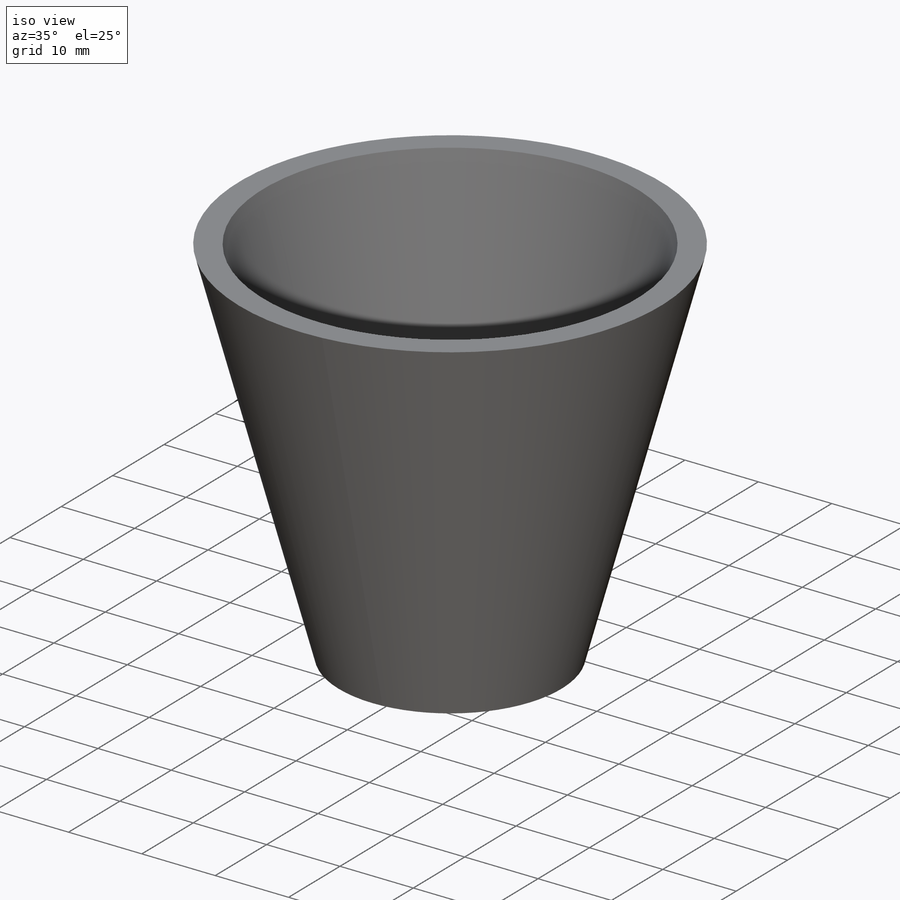
[diagram: iso view]
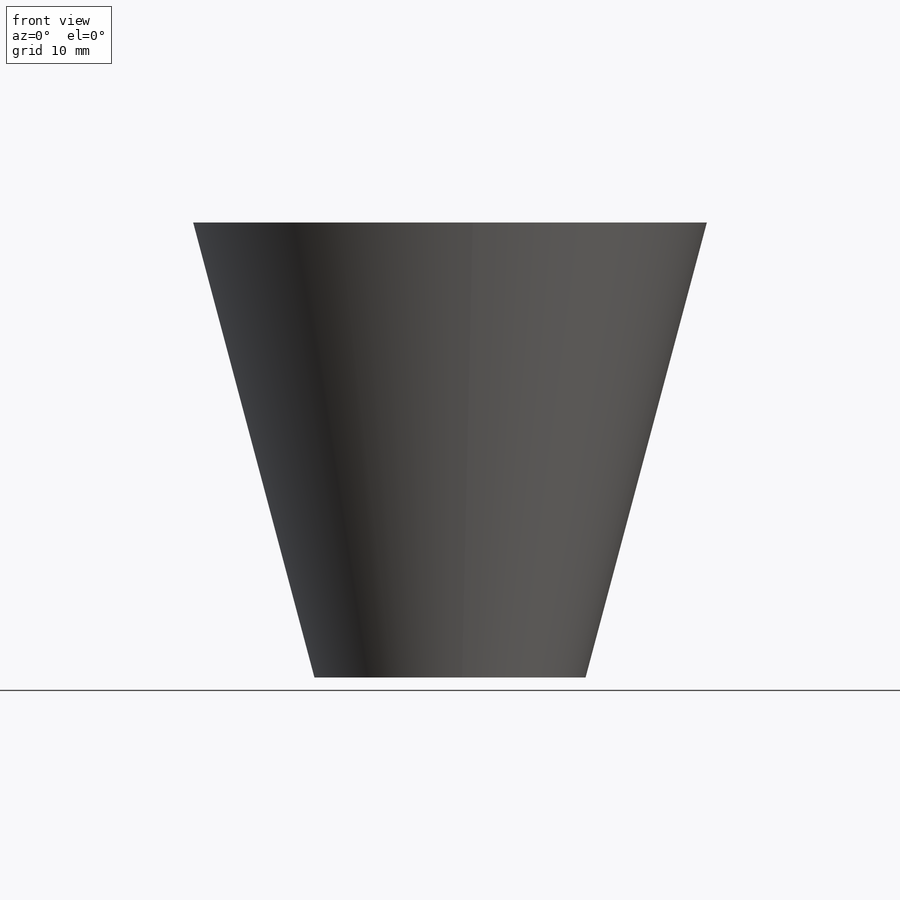
[diagram: front view]
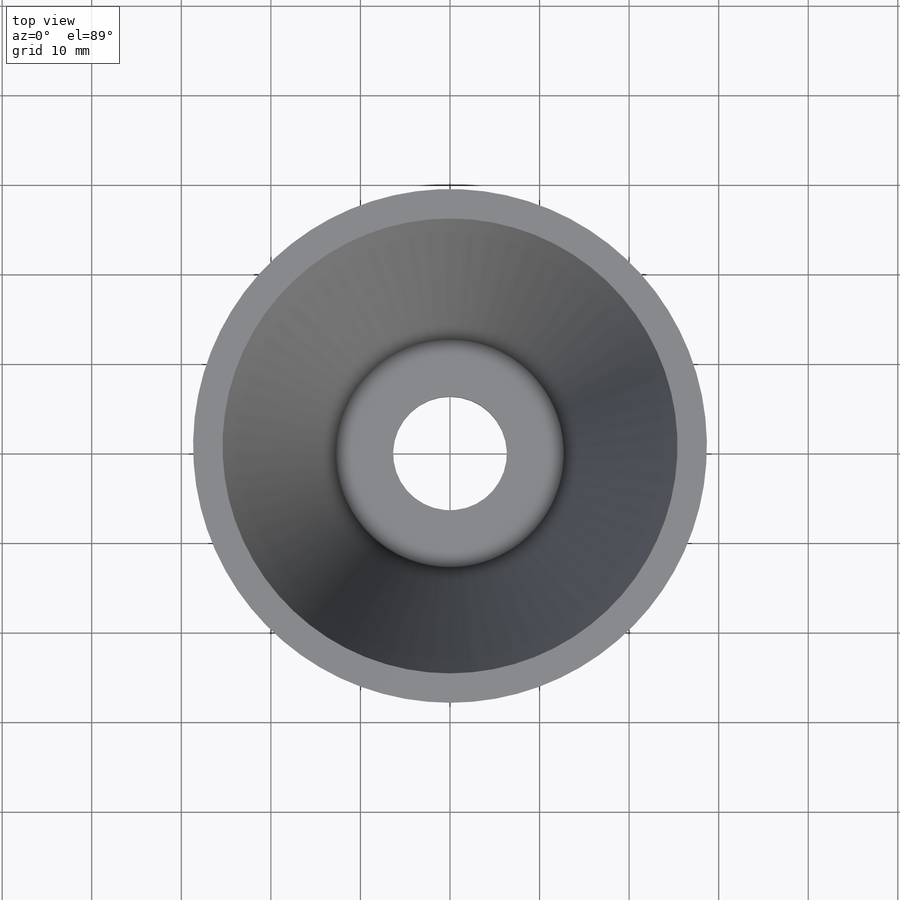
[diagram: top view]
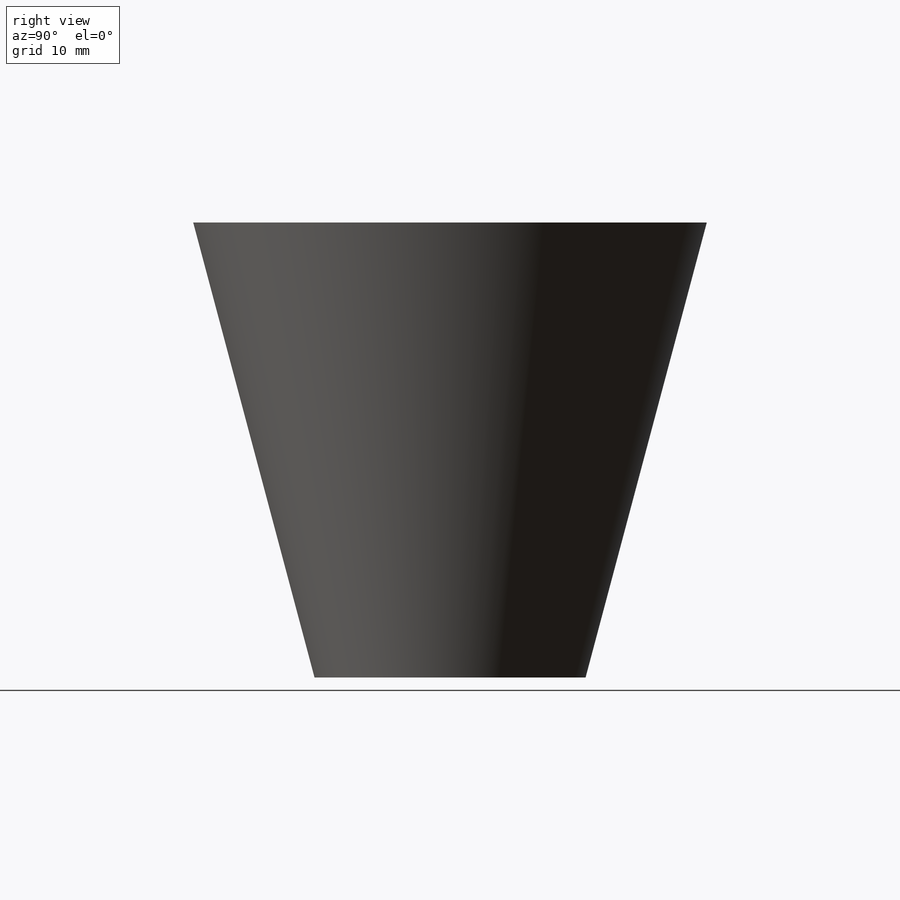
[diagram: right view]
SOLIDWORKS PART (.sldprt)
format: sldprt  version: not decoded by parser v0  size: 210,432 bytes
history: native  units: mm
features: sketch x3, material x1, revolve x1, cut_extrude x1 + 2 further entries (+12 scaffold rows collapsed)
feature tree (20):
  scaffold x12  (default folders/planes/origin — collapsed)
  material  "Specific Gravity 1.00"
  "Core Surface Bodies"
  "Parting Surface Bodies"
  sketch  "Sketch1"  dims[D1=3.175mm D2=3.175mm D3=25.4mm D4=50.8mm D5=50.8mm]
  revolve  "Revolve1"  Angle=360deg
  sketch  "Sketch2"  dims[D1=12.7mm]
  cut_extrude  "Cut-Extrude1"  Depth=50.8mm
  sketch  "Sketch5"  dims[c1.D1=76.2mm c2.D1=50.8mm c2.D2=101.6mm c2.D3=3.0deg]
decode coverage: 5 of 5 modeling features carry decoded parameters; 2 rows unclassified (native names shown)
note: suppression state not decoded; provenance and decode notes live in map.json
